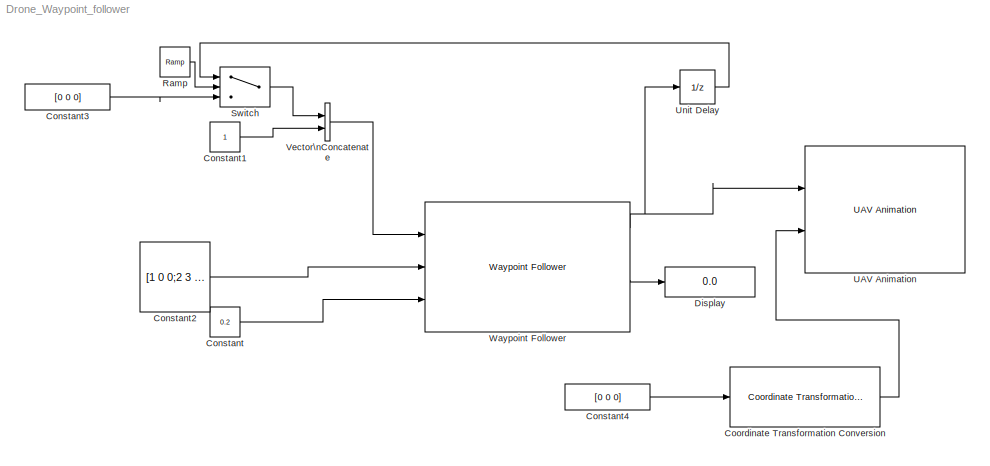
MODEL Drone_Waypoint_follower
KIND model
BLOCK [Constant] Constant
  SID = 2
  Value = 0.2
BLOCK [Constant] Constant1
  SID = 3
BLOCK [Constant] Constant2
  SID = 14
  Value = [1 0 0;2 3 2;4 3 4;2 4 3;0 0 0]
BLOCK [Constant] Constant3
  SID = 12
  Value = [0 0 0]
BLOCK [Constant] Constant4
  SID = 13
  Value = [0 0 0]
BLOCK [Reference] Coordinate Transformation Conversion  REF=robotcorelib/Coordinate Transformation Conversion
  InputEulerSequence = ZYX
  InputRepresentation = Euler Angles
  OutputEulerSequence = ZYX
  OutputRepresentation = Quaternion
  Ports = [1, 1]
  SID = 4
  ShowTrVecInputPort = on
  ShowTrVecOutputPort = on
  SimulateUsing = Interpreted execution
  SourceBlock = robotcorelib/Coordinate Transformation Conversion
  SourceType = robotics.slcore.internal.block.CoordinateTransformationConversion
BLOCK [Display] Display
  Decimation = 1
  Ports = [1]
  SID = 16
BLOCK [Reference] Ramp  REF=simulink/Sources/Ramp
  InitialOutput = 0
  Ports = [0, 1]
  RTWMemSecDataConstants = Inherit from model
  RTWMemSecDataInternal = Inherit from model
  RTWMemSecDataParameters = Inherit from model
  RTWMemSecFuncExecute = Inherit from model
  RTWMemSecFuncInitTerm = Inherit from model
  SID = 11
  SourceBlock = simulink/Sources/Ramp
  SourceType = Ramp
  VectorParams1D = on
  slope = 1
  start = 0
BLOCK [Switch] Switch
  Criteria = u2 > Threshold
  InputSameDT = off
  SID = 7
  SaturateOnIntegerOverflow = off
BLOCK [Reference] UAV Animation  REF=uavutilslib/UAV Animation
  DrawMarkers = off
  DynamicUAVConfig = off
  InertialZDirection = Down
  NumUAV = 1
  Ports = [2]
  RotationFormat = Quaternion
  SID = 5
  SampleTime = -1
  SourceBlock = uavutilslib/UAV Animation
  SourceType = uav.sluav.internal.system.UAVAnimation
  UAVColor = [1 0 0]
  UAVSize = 1
  UAVTrajectoryAlpha = 1
  UAVType = Multirotor
BLOCK [UnitDelay] Unit Delay
  HasFrameUpgradeWarning = on
  SID = 17
  SampleTime = -1
BLOCK [Concatenate] Vector\nConcatenate
  Ports = [2, 1]
  SID = 6
BLOCK [Reference] Waypoint Follower  REF=uavalgslib/Waypoint Follower
  HoverAtLastWaypoint = off
  MinLookaheadDistance = 0.1
  Ports = [3, 4]
  SID = 1
  ShowCrossTrackErrorOutput = off
  ShowStatusOutput = off
  SimulateUsing = Interpreted execution
  SourceBlock = uavalgslib/Waypoint Follower
  SourceType = uav.sluav.internal.system.WaypointFollower
  StartFrom = first
  TransitionRadius = 10
  TransitionRadiusSource = internal
  UAVType = multirotor
  YawInput = off
LINE Constant1:1 -> Vector\nConcatenate:2
LINE Constant2:1 -> Waypoint Follower:2
LINE Constant3:1 -> Switch:3
LINE Constant4:1 -> Coordinate Transformation Conversion:1
LINE Constant:1 -> Waypoint Follower:3
LINE Coordinate Transformation Conversion:1 -> UAV Animation:2
LINE Ramp:1 -> Switch:2
LINE Switch:1 -> Vector\nConcatenate:1
LINE Unit Delay:1 -> Switch:1
LINE Vector\nConcatenate:1 -> Waypoint Follower:1
NET Waypoint Follower:1 -> UAV Animation:1, Unit Delay:1
LINE Waypoint Follower:3 -> Display:1
note: NET lines group one-source signal fan-out (src -> all destinations, sorted); 1:1 wires keep LINE
